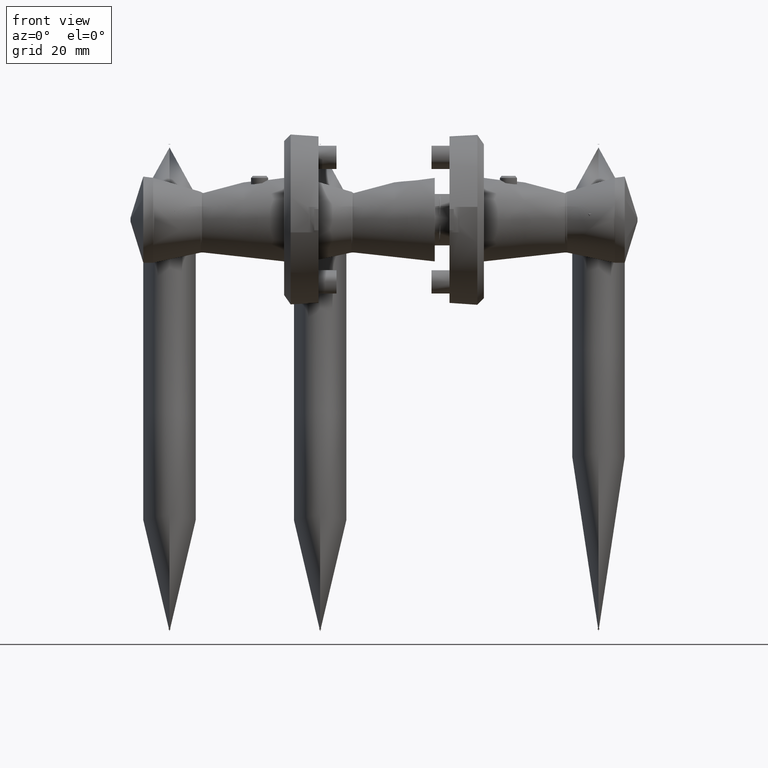
[diagram: clean part render]
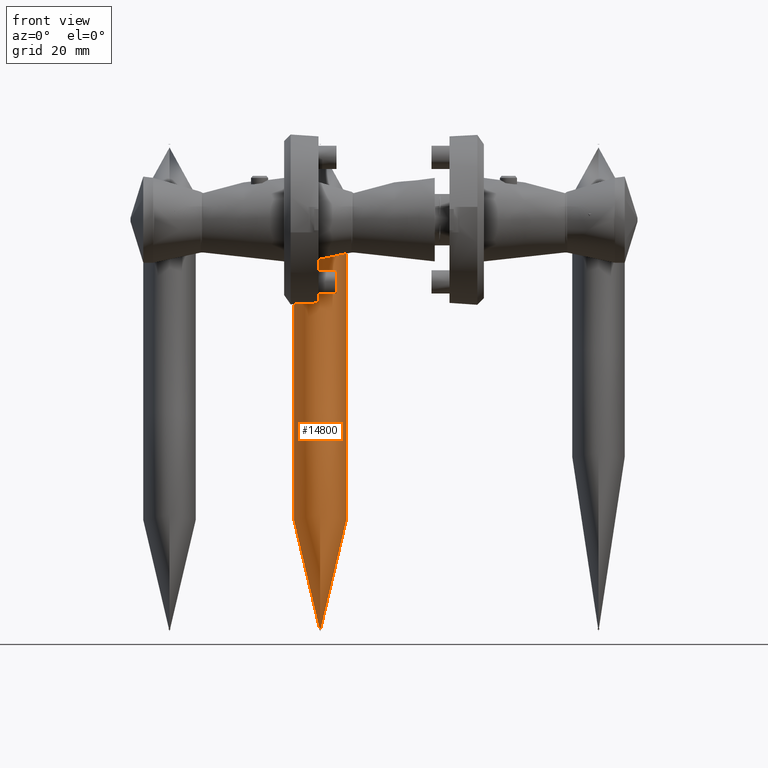
[diagram: same view with one face highlighted and labeled with its STEP entity id]
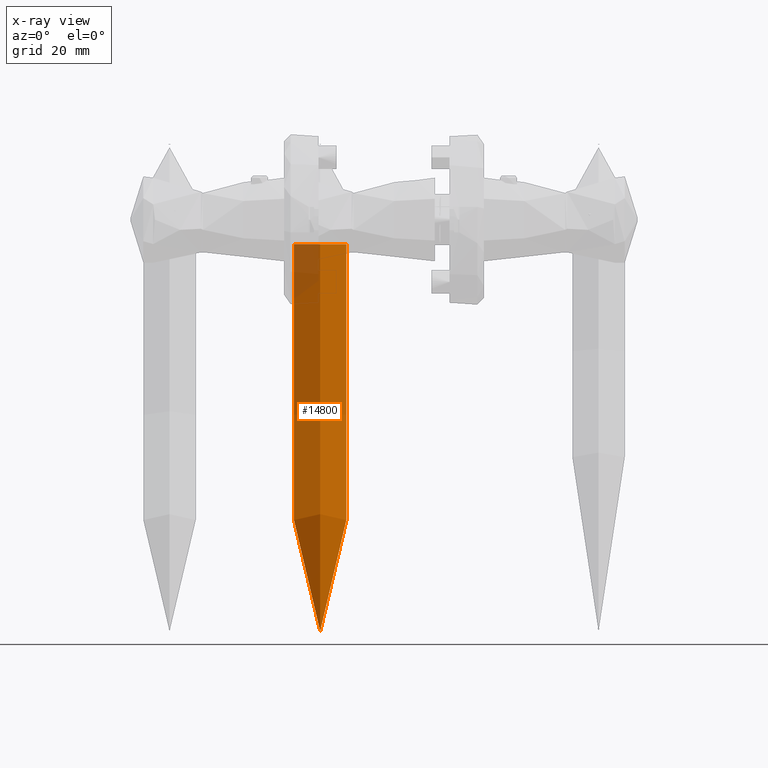
[diagram: x-ray of the same camera — body ghosted, the highlighted face saturated]
A machine part, front view. The second image highlights one B-rep face of the part: STEP entity #14800.
The next image is the same camera in x-ray: the body ghosted, the highlighted face saturated — about 6% of this face is hidden behind the body in this view.
In plain terms, the highlighted toroidal blend (fillet) surface has major radius 372.822 mm and minor (blend) radius 8 mm.
Its self-contained STEP definition (entity closure, byte-faithful):
#646 = CARTESIAN_POINT ( 'NONE',  ( -134.9880669066612600, 2.632861019210543900, 39.88215889627217300 ) ) ;
#954 = CARTESIAN_POINT ( 'NONE',  ( -130.5855359608337700, -10.75168424532002300, 37.07359902210245700 ) ) ;
#1101 = CARTESIAN_POINT ( 'NONE',  ( -130.8777540648578400, -9.863239344616179200, 30.77078371870461700 ) ) ;
#1267 = CARTESIAN_POINT ( 'NONE',  ( -131.0136851148836600, -9.449953058201359100, 39.88000443802781800 ) ) ;
#1421 = CARTESIAN_POINT ( 'NONE',  ( -132.8356858763141000, -3.910622490607064300, 27.00013342599689300 ) ) ;
#1589 = CARTESIAN_POINT ( 'NONE',  ( -133.6493204101420800, -1.437043380212770900, 42.74401966894166800 ) ) ;
#2065 = CARTESIAN_POINT ( 'NONE',  ( -135.3132721607964900, 3.621488924708650400, 31.92622371829326900 ) ) ;
#2384 = CARTESIAN_POINT ( 'NONE',  ( -134.8829990901372500, 2.313446035778742500, 29.70856418451039000 ) ) ;
#3306 = VERTEX_POINT ( 'NONE', #36159 ) ;
#4664 = CARTESIAN_POINT ( 'NONE',  ( -130.6611719267282300, -10.52172355000782900, 37.82560427829742600 ) ) ;
#4822 = CARTESIAN_POINT ( 'NONE',  ( -132.1973670384388400, -5.851246447322084000, 27.42030764259845200 ) ) ;
#4989 = CARTESIAN_POINT ( 'NONE',  ( -130.5657029879453700, -10.81198334857726600, 36.82023667152982000 ) ) ;
#5148 = CARTESIAN_POINT ( 'NONE',  ( -134.4558833251341200, 1.014988988276755100, 28.48907452734074400 ) ) ;
#5313 = CARTESIAN_POINT ( 'NONE',  ( -135.1664146247906000, 3.175038937031698300, 30.99401845171069400 ) ) ;
#5789 = CARTESIAN_POINT ( 'NONE',  ( -135.5008623718548200, 4.191764485895907600, 35.00000000101988500 ) ) ;
#7608 = CARTESIAN_POINT ( 'NONE',  ( -135.5008623718548200, 4.191764485895907600, 35.00000000101988500 ) ) ;
#7644 = CARTESIAN_POINT ( 'NONE',  ( -17.30000000000003600, 15.00000000000001800, 35.00000000000000000 ) ) ;
#8253 = CARTESIAN_POINT ( 'NONE',  ( -131.6807307620732100, -7.421950744111923000, 41.79790050532675800 ) ) ;
#8409 = CARTESIAN_POINT ( 'NONE',  ( -133.4089641957964400, -2.167760979065640900, 42.89712706022854100 ) ) ;
#8559 = CARTESIAN_POINT ( 'NONE',  ( -133.5671446921728900, -1.686869728467732300, 27.20343980279854200 ) ) ;
#8723 = CARTESIAN_POINT ( 'NONE',  ( -131.7485893640482900, -7.215647459792777800, 28.05713716526667400 ) ) ;
#8879 = CARTESIAN_POINT ( 'NONE',  ( -130.6296584496953400, -10.61753531959765500, 32.41817464729688700 ) ) ;
#9048 = CARTESIAN_POINT ( 'NONE',  ( -135.4161180040733000, 3.934141188957112500, 32.91810952457181100 ) ) ;
#10296 = FACE_OUTER_BOUND ( 'NONE', #42719, .T. ) ;
#10521 = AXIS2_PLACEMENT_3D ( 'NONE', #7644, #26091, #29186 ) ;
#11437 = AXIS2_PLACEMENT_3D ( 'NONE', #24111, #16547, #31561 ) ;
#11491 = CARTESIAN_POINT ( 'NONE',  ( -135.2432953694329300, 3.408757879144755700, 38.54652429186266000 ) ) ;
#11957 = CARTESIAN_POINT ( 'NONE',  ( -133.1635325216030600, -2.913911164214101100, 42.98743971017021400 ) ) ;
#12117 = CARTESIAN_POINT ( 'NONE',  ( -130.7579687984529600, -10.22742780352842700, 31.46046821359829000 ) ) ;
#12278 = CARTESIAN_POINT ( 'NONE',  ( -131.3499555643066700, -8.427600402461672900, 41.02879783359573900 ) ) ;
#12440 = CARTESIAN_POINT ( 'NONE',  ( -133.3275171633072800, -2.415371093259692300, 27.05138658151274500 ) ) ;
#12595 = CARTESIAN_POINT ( 'NONE',  ( -131.8921126335598300, -6.779293843292778700, 27.81126706862961800 ) ) ;
#12757 = CARTESIAN_POINT ( 'NONE',  ( -134.7100852186352100, 1.787779330881687400, 29.15579504444302800 ) ) ;
#13076 = CARTESIAN_POINT ( 'NONE',  ( -134.6495055040965400, 1.603613569262958300, 28.98010344583839900 ) ) ;
#13227 = CARTESIAN_POINT ( 'NONE',  ( -135.2435387531578200, 3.409497714708097100, 31.45511023742395600 ) ) ;
#14800 = ADVANCED_FACE ( 'NONE', ( #10296, #29377 ), #35145, .T. ) ;
#15530 = CARTESIAN_POINT ( 'NONE',  ( -135.5008624800185300, 4.191764450508619800, 35.52834532989830100 ) ) ;
#15684 = CARTESIAN_POINT ( 'NONE',  ( -132.6752563733533300, -4.398358977401504600, 42.94917119299339700 ) ) ;
#15850 = CARTESIAN_POINT ( 'NONE',  ( -131.3485717300534100, -8.431808098377153700, 28.97505578555756900 ) ) ;
#16002 = CARTESIAN_POINT ( 'NONE',  ( -133.0818396052414700, -3.162270774585485900, 43.00007896520023100 ) ) ;
#16164 = CARTESIAN_POINT ( 'NONE',  ( -134.0319842447744600, -0.2737018368974314400, 42.29274589012492700 ) ) ;
#16333 = CARTESIAN_POINT ( 'NONE',  ( -132.4332490239933400, -5.134114613974911200, 27.20482119385425100 ) ) ;
#16547 = DIRECTION ( 'NONE',  ( 0.0000000000000000000, 0.0000000000000000000, 1.000000000000000000 ) ) ;
#16820 = CARTESIAN_POINT ( 'NONE',  ( -135.1239312290904000, 3.045888657239177000, 30.76743086684738400 ) ) ;
#16988 = CARTESIAN_POINT ( 'NONE',  ( -135.3684057232504200, 3.789095505493788300, 32.41713496819854600 ) ) ;
#16992 = CARTESIAN_POINT ( 'NONE',  ( -135.5008623718547400, 4.191764485895906700, 35.00000000101987800 ) ) ;
#19105 = CARTESIAN_POINT ( 'NONE',  ( -135.1658893093049600, 3.173442236395604500, 39.00893983196608200 ) ) ;
#19424 = CARTESIAN_POINT ( 'NONE',  ( -132.3531625048165400, -5.377592530188980600, 42.73098105554296900 ) ) ;
#19575 = CARTESIAN_POINT ( 'NONE',  ( -132.4333378933858400, -5.133841862922508900, 42.79533523669654500 ) ) ;
#19731 = CARTESIAN_POINT ( 'NONE',  ( -134.6510397905755700, 1.608278123953570800, 41.03296200360923500 ) ) ;
#19899 = CARTESIAN_POINT ( 'NONE',  ( -133.6463960938540100, -1.445934882847510000, 27.26667781869616600 ) ) ;
#20055 = CARTESIAN_POINT ( 'NONE',  ( -134.8844117728480700, 2.317740854395034000, 40.28691848400796300 ) ) ;
#23097 = CARTESIAN_POINT ( 'NONE',  ( -130.7553704428334000, -10.23532744841340000, 38.55174399026996200 ) ) ;
#23269 = CARTESIAN_POINT ( 'NONE',  ( -130.8351512722153700, -9.992767419480788500, 30.99823080069909400 ) ) ;
#23419 = CARTESIAN_POINT ( 'NONE',  ( -131.7517217284155300, -7.206119383070025600, 41.93393635073912400 ) ) ;
#23579 = CARTESIAN_POINT ( 'NONE',  ( -134.1083242292989700, -0.04161993671867388100, 27.80848080596509000 ) ) ;
#23743 = CARTESIAN_POINT ( 'NONE',  ( -131.1179304852202800, -9.133026891186528200, 29.71352873639965600 ) ) ;
#24111 = CARTESIAN_POINT ( 'NONE',  ( -17.29999999999997600, -357.8223684210525400, 35.00000000000000000 ) ) ;
#24179 = EDGE_CURVE ( 'NONE', #33422, #33422, #43308, .T. ) ;
#26091 = DIRECTION ( 'NONE',  ( 1.000000000000000000, -1.387778780781445400E-016, 0.0000000000000000000 ) ) ;
#26829 = CARTESIAN_POINT ( 'NONE',  ( -130.5013794851748500, -11.00754788502807100, 34.47774316555440100 ) ) ;
#26972 = CARTESIAN_POINT ( 'NONE',  ( -132.1193395004008800, -6.088468529863978200, 27.50968886980680500 ) ) ;
#27131 = CARTESIAN_POINT ( 'NONE',  ( -132.1200455950521500, -6.086329090548160200, 42.49108959330489200 ) ) ;
#27315 = CARTESIAN_POINT ( 'NONE',  ( -134.2518951463004800, 0.3948486934386700700, 28.05377632502520100 ) ) ;
#27473 = CARTESIAN_POINT ( 'NONE',  ( -131.0145643199624600, -9.447295874040351600, 30.11608885766638700 ) ) ;
#29186 = DIRECTION ( 'NONE',  ( 0.0000000000000000000, 1.000000000000000000, 0.0000000000000000000 ) ) ;
#29377 = FACE_OUTER_BOUND ( 'NONE', #37916, .T. ) ;
#29548 = ORIENTED_EDGE ( 'NONE', *, *, #45807, .F. ) ;
#30398 = CARTESIAN_POINT ( 'NONE',  ( -130.6332046535441400, -10.60675251701021600, 37.57596129546684700 ) ) ;
#30547 = CARTESIAN_POINT ( 'NONE',  ( -133.8050850770581500, -0.9634998613972081100, 42.59302793999215500 ) ) ;
#30714 = CARTESIAN_POINT ( 'NONE',  ( -132.3541399448266700, -5.374621055315448500, 27.26816210914804700 ) ) ;
#30873 = CARTESIAN_POINT ( 'NONE',  ( -130.5174539093443700, -10.95867659724164300, 33.95472472428925000 ) ) ;
#31029 = CARTESIAN_POINT ( 'NONE',  ( -130.5818584307602100, -10.76286394841443300, 32.91981438792485900 ) ) ;
#31561 = DIRECTION ( 'NONE',  ( 1.000000000000000000, 0.0000000000000000000, 0.0000000000000000000 ) ) ;
#31887 = ORIENTED_EDGE ( 'NONE', *, *, #24179, .T. ) ;
#33422 = VERTEX_POINT ( 'NONE', #16992 ) ;
#33621 = CARTESIAN_POINT ( 'NONE',  ( -135.4202796363292700, 3.946784159330859200, 37.08150161291032300 ) ) ;
#34087 = CARTESIAN_POINT ( 'NONE',  ( -131.8960085636253200, -6.767449700268093300, 42.18047820266222900 ) ) ;
#34243 = CARTESIAN_POINT ( 'NONE',  ( -130.7231290300425400, -10.33335255855971700, 31.69637174128726200 ) ) ;
#34392 = CARTESIAN_POINT ( 'NONE',  ( -133.8815666327030000, -0.7309876994758082200, 27.50809121665324500 ) ) ;
#34556 = CARTESIAN_POINT ( 'NONE',  ( -133.1652859959686500, -2.908579250213861700, 26.99986708401791400 ) ) ;
#34731 = CARTESIAN_POINT ( 'NONE',  ( -134.3216846619338600, 0.6070144084134653200, 41.79752138277972800 ) ) ;
#35145 = TOROIDAL_SURFACE ( 'NONE', #11437, 372.8223684210525400, 8.000000000000001800 ) ;
#35484 = CIRCLE ( 'NONE', #10521, 8.000000000000001800 ) ;
#36159 = CARTESIAN_POINT ( 'NONE',  ( -17.30000000000003600, 23.00000000000002100, 35.00000000000000000 ) ) ;
#37481 = CARTESIAN_POINT ( 'NONE',  ( -135.3729692297257800, 3.802968770915244000, 37.57997758466029800 ) ) ;
#37791 = CARTESIAN_POINT ( 'NONE',  ( -134.5248093733877100, 1.224529585755818900, 41.36338550772401100 ) ) ;
#37916 = EDGE_LOOP ( 'NONE', ( #29548 ) ) ;
#37940 = CARTESIAN_POINT ( 'NONE',  ( -131.4758026327317000, -8.044989110809217100, 41.35967434323890000 ) ) ;
#38100 = CARTESIAN_POINT ( 'NONE',  ( -132.1967313264115400, -5.853179329591455400, 42.57898270255142100 ) ) ;
#38264 = CARTESIAN_POINT ( 'NONE',  ( -130.5016283094325600, -11.00679265417522000, 35.53429840589805600 ) ) ;
#38424 = CARTESIAN_POINT ( 'NONE',  ( -134.1068790554072100, -0.04601408955674880100, 42.17952253905847500 ) ) ;
#38921 = CARTESIAN_POINT ( 'NONE',  ( -134.9865923498448400, 2.628373268341683800, 30.11109011201618200 ) ) ;
#39072 = CARTESIAN_POINT ( 'NONE',  ( -135.4846660128010900, 4.142527106898301200, 33.94935163743471700 ) ) ;
#41201 = CARTESIAN_POINT ( 'NONE',  ( -135.2787845897106800, 3.516645931449074800, 38.30680603306938500 ) ) ;
#41514 = CARTESIAN_POINT ( 'NONE',  ( -132.8373906771666700, -3.905440496144220000, 42.99984095897184500 ) ) ;
#41668 = CARTESIAN_POINT ( 'NONE',  ( -130.5179383602235500, -10.95720145478632400, 36.05375316739876700 ) ) ;
#41831 = CARTESIAN_POINT ( 'NONE',  ( -131.1192974801954800, -9.128871239242645400, 40.29141846800615000 ) ) ;
#41980 = CARTESIAN_POINT ( 'NONE',  ( -133.3273500368760600, -2.415880100215241900, 42.93594900395661500 ) ) ;
#42144 = CARTESIAN_POINT ( 'NONE',  ( -132.6726958401993100, -4.406138544479434300, 27.05225893693255700 ) ) ;
#42317 = CARTESIAN_POINT ( 'NONE',  ( -135.4363270659884200, 3.995577133925787300, 33.17486701868352100 ) ) ;
#42719 = EDGE_LOOP ( 'NONE', ( #31887 ) ) ;
#42792 = CARTESIAN_POINT ( 'NONE',  ( -135.5008622636910900, 4.191764521283194400, 34.47165467214146200 ) ) ;
#43308 = B_SPLINE_CURVE_WITH_KNOTS ( 'NONE', 3,
 ( #7608, #15530, #44598, #33621, #37481, #41201, #11491, #19105, #44908, #646, #20055, #19731, #37791, #34731, #45530, #38424, #16164, #30547, #1589, #8409, #41980, #11957, #16002, #41514, #15684, #19575, #19424, #38100, #27131, #45854, #34087, #23419, #8253, #37940, #12278, #41831, #1267, #45217, #23097, #4664, #30398, #954, #4989, #41668, #38264, #26829, #30873, #31029, #8879, #34243, #12117, #23269, #1101, #27473, #23743, #15850, #45366, #8723, #12595, #26972, #4822, #30714, #16333, #42144, #1421, #34556, #12440, #8559, #19899, #45688, #34392, #23579, #27315, #5148, #46159, #13076, #12757, #2384, #38921, #16820, #5313, #13227, #2065, #16988, #9048, #42317, #39072, #42792, #5789 ),
 .UNSPECIFIED., .T., .F.,
 ( 4, 2, 2, 2, 2, 2, 2, 2, 2, 2, 2, 2, 2, 2, 2, 2, 2, 2, 2, 2, 2, 2, 2, 2, 2, 2, 2, 2, 2, 2, 2, 2, 2, 2, 2, 2, 2, 2, 2, 2, 2, 1, 2, 2, 4 ),
 ( 0.0000000000000000000, 0.001582840822026165700, 0.003165681644052331500, 0.003957102055065414600, 0.004748522466078497700, 0.006331363288104663000, 0.007914204110130829100, 0.008705624521143899200, 0.009497044932156972800, 0.01107988575418309200, 0.01187130616519614800, 0.01266272657620920400, 0.01424556739823532200, 0.01503698780924837000, 0.01582840822026141500, 0.01661982863127446300, 0.01741124904228750700, 0.01899408986431359900, 0.02057693068633968700, 0.02215977150836577800, 0.02295119191937882200, 0.02374261233039187000, 0.02532545315241797900, 0.02690829397444408400, 0.02849113479647019300, 0.02928255520748326800, 0.03007397561849634000, 0.03165681644052247000, 0.03323965726254860000, 0.03482249808457473000, 0.03561391849558780100, 0.03640533890660086600, 0.03798817972862698200, 0.03957102055065309800, 0.04036244096166615600, 0.04115386137267920700, 0.04273670219470534400, 0.04352812260571839500, 0.04431954301673145200, 0.04590238383875758200, 0.04669380424977064700, 0.04748522466078371200, 0.04827664507179677700, 0.04906806548280984900, 0.05065090630483599900 ),
 .UNSPECIFIED. ) ;
#44598 = CARTESIAN_POINT ( 'NONE',  ( -135.4843127502643100, 4.141461617710968200, 36.05704982103642200 ) ) ;
#44908 = CARTESIAN_POINT ( 'NONE',  ( -135.1238707576337700, 3.045702408534119300, 39.23270888852977100 ) ) ;
#45217 = CARTESIAN_POINT ( 'NONE',  ( -130.8322061053804600, -10.00173481379705000, 39.01094755982905600 ) ) ;
#45366 = CARTESIAN_POINT ( 'NONE',  ( -131.4772147295737500, -8.040690286362789200, 28.63715740601854900 ) ) ;
#45530 = CARTESIAN_POINT ( 'NONE',  ( -134.2516629494349700, 0.3941425089594036700, 41.93190790346614700 ) ) ;
#45688 = CARTESIAN_POINT ( 'NONE',  ( -133.8036176164793000, -0.9679617249404800500, 27.41891313449251700 ) ) ;
#45807 = EDGE_CURVE ( 'NONE', #3306, #3306, #35484, .T. ) ;
#45854 = CARTESIAN_POINT ( 'NONE',  ( -131.9696799295165600, -6.543462849847291100, 42.29183730431668000 ) ) ;
#46159 = CARTESIAN_POINT ( 'NONE',  ( -134.5222918167575900, 1.216875215979867500, 28.64634751260586800 ) ) ;